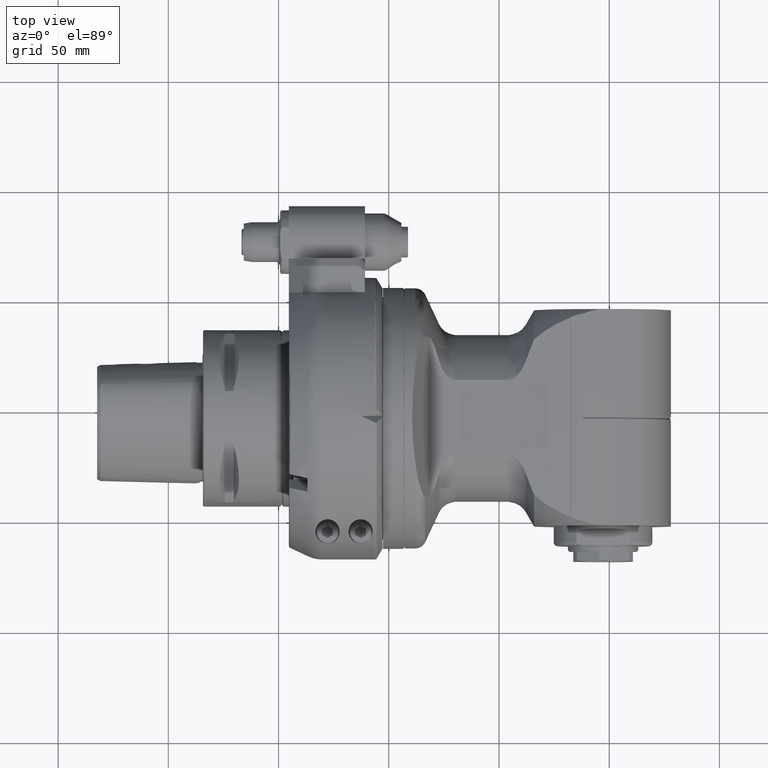
[diagram: clean part render]
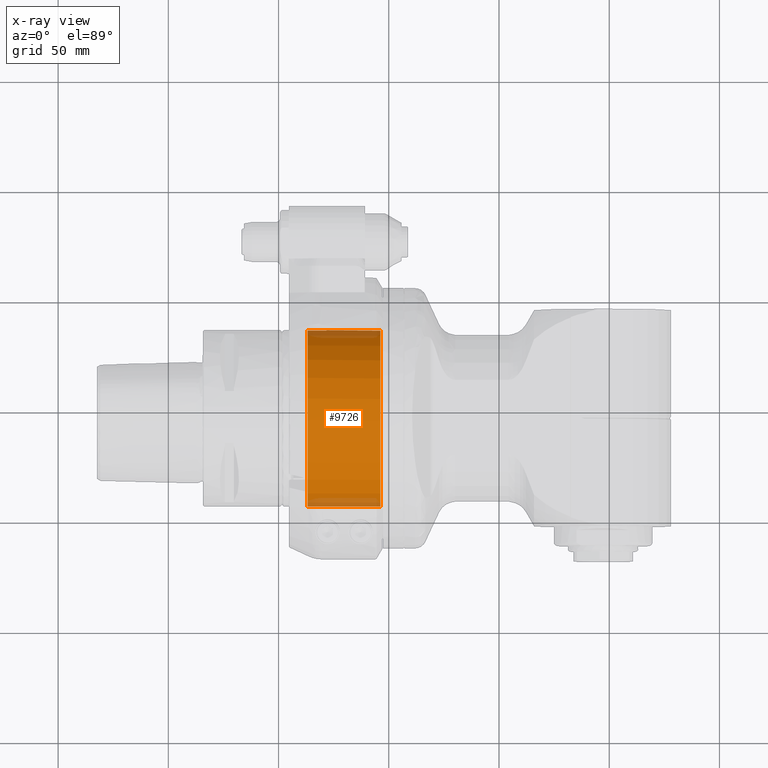
[diagram: x-ray — body ghosted, one internal face saturated and labeled with its STEP entity id]
A machine part, top view, then the same camera in x-ray: the body is ghosted and one INTERNAL B-rep face — a face not visible from any outside direction — is saturated and labeled: STEP entity #9726.
In plain terms, the highlighted cylindrical surface (partial cylindrical patch) has radius 40 mm, axis along (1, -0, -0).
Its self-contained STEP definition (entity closure, byte-faithful):
#764=CYLINDRICAL_SURFACE('',#10638,1.5748031496063);
#1090=FACE_OUTER_BOUND('',#1736,.T.);
#1736=EDGE_LOOP('',(#7512,#7513,#7514,#7515,#7516,#7517,#7518,#7519));
#2330=LINE('',#15964,#2934);
#2338=LINE('',#16056,#2942);
#2351=LINE('',#16248,#2955);
#2355=LINE('',#16258,#2959);
#2934=VECTOR('',#12419,1.29921258933976);
#2942=VECTOR('',#12449,1.29921258933976);
#2955=VECTOR('',#12508,0.334645651120551);
#2959=VECTOR('',#12518,0.334645651120551);
#3561=CIRCLE('',#10628,1.5748031496063);
#3566=CIRCLE('',#10639,1.5748031496063);
#3567=CIRCLE('',#10640,1.5748031496063);
#3568=CIRCLE('',#10641,1.5748031496063);
#4224=VERTEX_POINT('',#15961);
#4225=VERTEX_POINT('',#15963);
#4239=VERTEX_POINT('',#16053);
#4240=VERTEX_POINT('',#16055);
#4259=VERTEX_POINT('',#16183);
#4269=VERTEX_POINT('',#16247);
#4271=VERTEX_POINT('',#16255);
#4272=VERTEX_POINT('',#16257);
#5388=EDGE_CURVE('',#4225,#4224,#2330,.T.);
#5409=EDGE_CURVE('',#4240,#4239,#2338,.T.);
#5434=EDGE_CURVE('',#4240,#4259,#3561,.T.);
#5449=EDGE_CURVE('',#4269,#4259,#2351,.T.);
#5453=EDGE_CURVE('',#4225,#4239,#3566,.T.);
#5454=EDGE_CURVE('',#4271,#4224,#3567,.T.);
#5455=EDGE_CURVE('',#4271,#4272,#2355,.T.);
#5456=EDGE_CURVE('',#4269,#4272,#3568,.T.);
#7512=ORIENTED_EDGE('',*,*,#5453,.F.);
#7513=ORIENTED_EDGE('',*,*,#5388,.T.);
#7514=ORIENTED_EDGE('',*,*,#5454,.F.);
#7515=ORIENTED_EDGE('',*,*,#5455,.T.);
#7516=ORIENTED_EDGE('',*,*,#5456,.F.);
#7517=ORIENTED_EDGE('',*,*,#5449,.T.);
#7518=ORIENTED_EDGE('',*,*,#5434,.F.);
#7519=ORIENTED_EDGE('',*,*,#5409,.T.);
#9726=ADVANCED_FACE('',(#1090),#764,.F.);
#10628=AXIS2_PLACEMENT_3D('',#16184,#12482,#12483);
#10638=AXIS2_PLACEMENT_3D('',#16253,#12512,#12513);
#10639=AXIS2_PLACEMENT_3D('',#16254,#12514,#12515);
#10640=AXIS2_PLACEMENT_3D('',#16256,#12516,#12517);
#10641=AXIS2_PLACEMENT_3D('',#16259,#12519,#12520);
#12419=DIRECTION('',(-1.,0.,0.));
#12449=DIRECTION('',(1.,0.,0.));
#12482=DIRECTION('center_axis',(1.,0.,0.));
#12483=DIRECTION('ref_axis',(0.,-0.999296627777989,-0.0374999961538496));
#12508=DIRECTION('',(-1.,0.,0.));
#12512=DIRECTION('center_axis',(1.,0.,0.));
#12513=DIRECTION('ref_axis',(0.,1.,-1.22464679914735E-16));
#12514=DIRECTION('center_axis',(-1.,0.,0.));
#12515=DIRECTION('ref_axis',(0.,1.,0.));
#12516=DIRECTION('center_axis',(1.,0.,0.));
#12517=DIRECTION('ref_axis',(0.,0.99365172470036,0.112499999999996));
#12518=DIRECTION('',(1.,0.,0.));
#12519=DIRECTION('center_axis',(1.,0.,0.));
#12520=DIRECTION('ref_axis',(0.,1.,0.));
#15961=CARTESIAN_POINT('',(-1.12204724409449,-1.57369547681575,0.0590551120533071));
#15963=CARTESIAN_POINT('',(0.177165345245276,-1.57369547681575,0.0590551120533071));
#15964=CARTESIAN_POINT('',(0.177165345245276,-1.57369547681575,0.0590551120533071));
#16053=CARTESIAN_POINT('',(0.177165345245276,-1.57369547681575,-0.0590551120533071));
#16055=CARTESIAN_POINT('',(-1.12204724409449,-1.57369547681575,-0.0590551120533071));
#16056=CARTESIAN_POINT('',(-1.12204724409449,-1.57369547681575,-0.0590551120533071));
#16183=CARTESIAN_POINT('',(-1.12204724409449,1.56480586566969,-0.177165354330709));
#16184=CARTESIAN_POINT('Origin',(-1.12204724409449,0.,0.));
#16247=CARTESIAN_POINT('',(-0.787401592974016,1.56480586566969,-0.177165354330709));
#16248=CARTESIAN_POINT('',(-0.787401592974016,1.56480586566969,-0.177165354330709));
#16253=CARTESIAN_POINT('Origin',(-0.613264688067717,0.,0.));
#16254=CARTESIAN_POINT('Origin',(0.177165345245276,0.,0.));
#16255=CARTESIAN_POINT('',(-1.12204724409449,1.56480586566969,0.177165354330709));
#16256=CARTESIAN_POINT('Origin',(-1.12204724409449,0.,0.));
#16257=CARTESIAN_POINT('',(-0.787401592974016,1.56480586566969,0.177165354330709));
#16258=CARTESIAN_POINT('',(-1.12204724409449,1.56480586566969,0.177165354330709));
#16259=CARTESIAN_POINT('Origin',(-0.787401592974016,0.,0.));